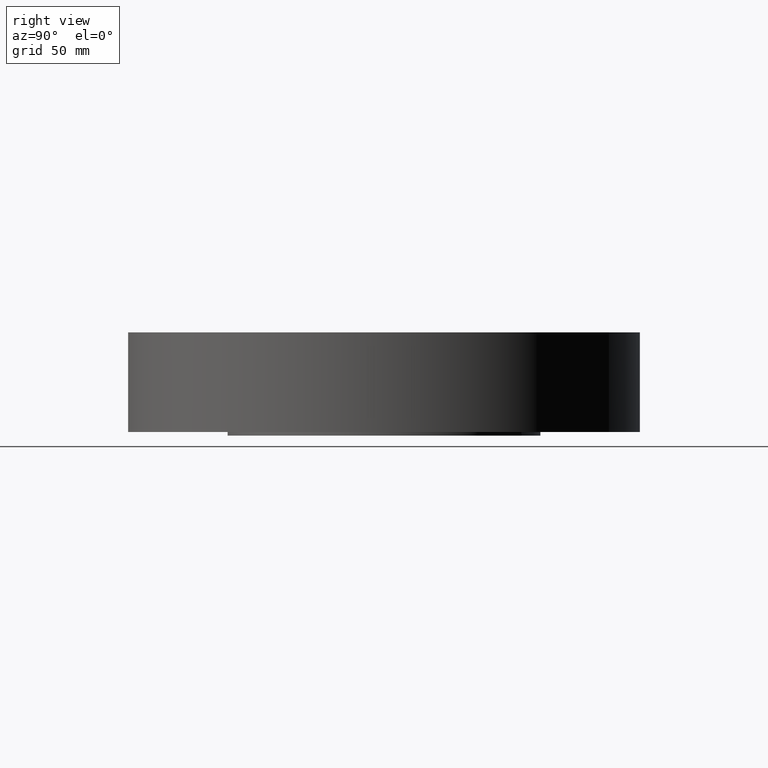
[diagram: clean part render]
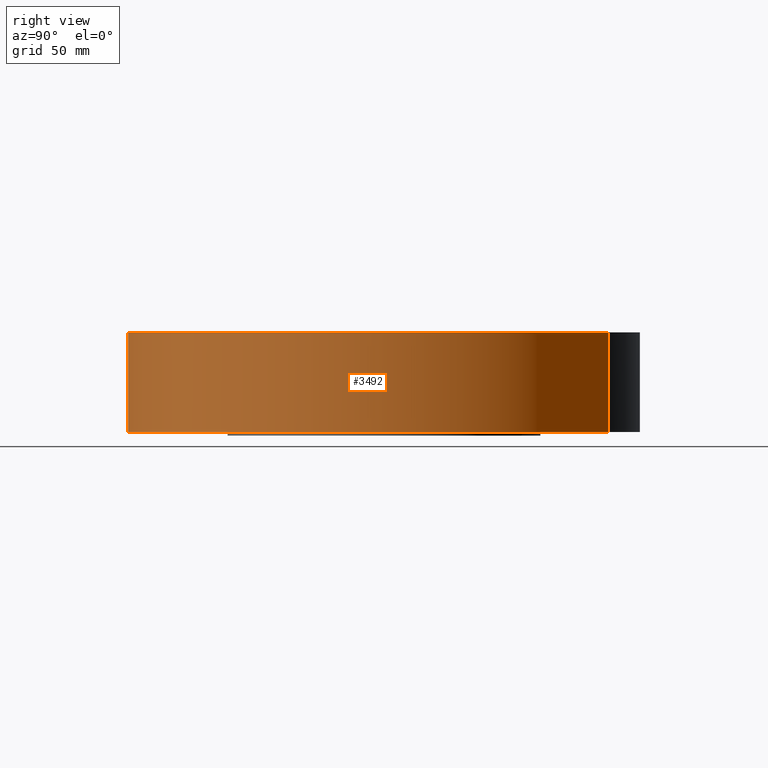
[diagram: same view with one face highlighted and labeled with its STEP entity id]
A machine part, right view. The second image highlights one B-rep face of the part: STEP entity #3492.
In plain terms, the highlighted cylindrical surface (partial cylindrical patch) has radius 114.3 mm, axis along (0, 0, -1).
Its self-contained STEP definition (entity closure, byte-faithful):
#3294=AXIS2_PLACEMENT_3D('Circle Axis2P3D',#3292,#3293,$) ;
#3453=AXIS2_PLACEMENT_3D('Cylinder Axis2P3D',#3450,#3451,#3452) ;
#3483=AXIS2_PLACEMENT_3D('Circle Axis2P3D',#3481,#3482,$) ;
#3287=CARTESIAN_POINT('Vertex',(-2.15741492373,-3.94912152852,-3.91637728372E-014)) ;
#3289=CARTESIAN_POINT('Vertex',(2.15741492373,3.94912152852,-3.91637728372E-014)) ;
#3292=CARTESIAN_POINT('Axis2P3D Location',(0.,0.,0.)) ;
#3450=CARTESIAN_POINT('Axis2P3D Location',(0.,0.,0.843750000003)) ;
#3455=CARTESIAN_POINT('Line Origine',(-2.15741492373,-3.94912152852,0.875000000003)) ;
#3459=CARTESIAN_POINT('Vertex',(-2.15741492373,-3.94912152852,1.75000000001)) ;
#3466=CARTESIAN_POINT('Vertex',(2.15741492373,3.94912152852,1.75000000001)) ;
#3469=CARTESIAN_POINT('Line Origine',(2.15741492373,3.94912152852,0.875000000003)) ;
#3481=CARTESIAN_POINT('Axis2P3D Location',(0.,0.,1.75000000001)) ;
#3293=DIRECTION('Axis2P3D Direction',(0.,0.,-0.0393700787402)) ;
#3451=DIRECTION('Axis2P3D Direction',(0.,0.,-0.0393700787402)) ;
#3452=DIRECTION('Axis2P3D XDirection',(0.0188750212049,0.0345504945626,0.)) ;
#3456=DIRECTION('Vector Direction',(0.,0.,-0.0393700787402)) ;
#3470=DIRECTION('Vector Direction',(0.,0.,-0.0393700787402)) ;
#3482=DIRECTION('Axis2P3D Direction',(0.,0.,-0.0393700787402)) ;
#3457=VECTOR('Line Direction',#3456,0.0393700787402) ;
#3471=VECTOR('Line Direction',#3470,0.0393700787402) ;
#3487=ORIENTED_EDGE('',*,*,#3296,.F.) ;
#3488=ORIENTED_EDGE('',*,*,#3473,.T.) ;
#3489=ORIENTED_EDGE('',*,*,#3485,.T.) ;
#3490=ORIENTED_EDGE('',*,*,#3461,.F.) ;
#3492=ADVANCED_FACE('PartBody',(#3491),#3454,.T.) ;
#3295=CIRCLE('generated circle',#3294,4.50000000002) ;
#3484=CIRCLE('generated circle',#3483,4.50000000002) ;
#3454=CYLINDRICAL_SURFACE('generated cylinder',#3453,4.50000000002) ;
#3296=EDGE_CURVE('',#3290,#3288,#3295,.T.) ;
#3461=EDGE_CURVE('',#3288,#3460,#3458,.F.) ;
#3473=EDGE_CURVE('',#3290,#3467,#3472,.F.) ;
#3485=EDGE_CURVE('',#3467,#3460,#3484,.T.) ;
#3486=EDGE_LOOP('',(#3487,#3488,#3489,#3490)) ;
#3491=FACE_OUTER_BOUND('',#3486,.T.) ;
#3458=LINE('Line',#3455,#3457) ;
#3472=LINE('Line',#3469,#3471) ;
#3288=VERTEX_POINT('',#3287) ;
#3290=VERTEX_POINT('',#3289) ;
#3460=VERTEX_POINT('',#3459) ;
#3467=VERTEX_POINT('',#3466) ;